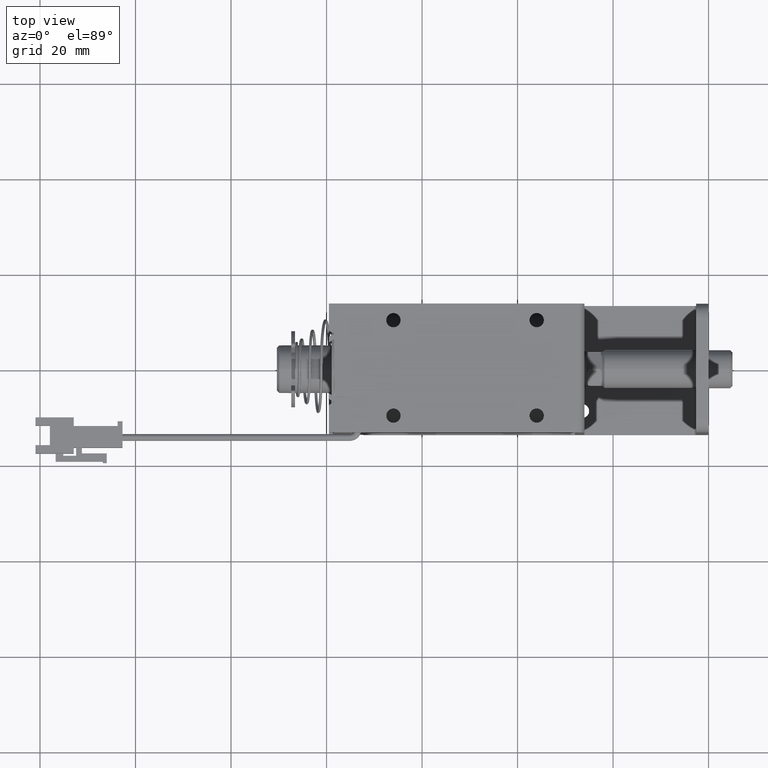
[diagram: clean part render]
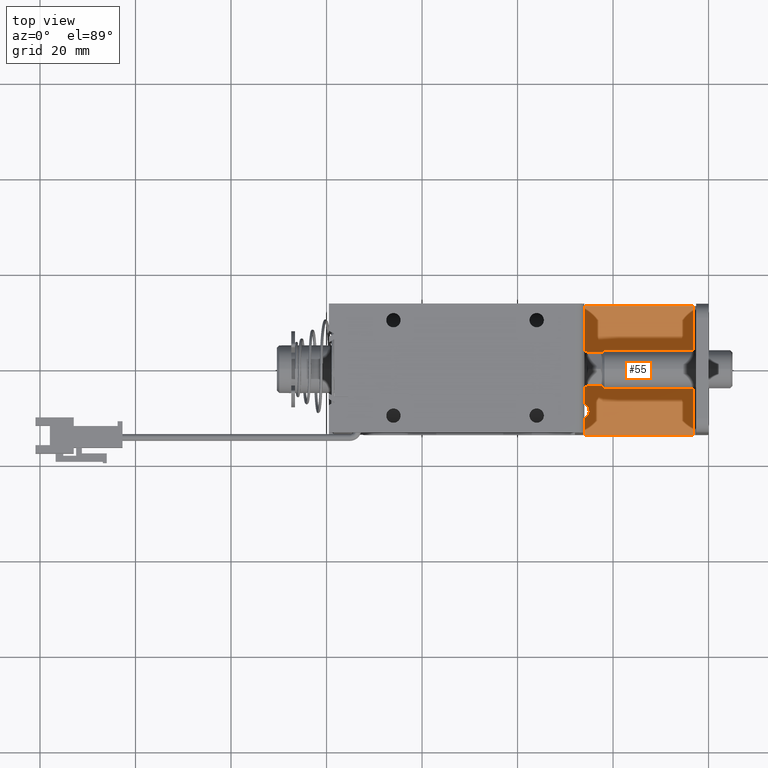
[diagram: same view with one face highlighted and labeled with its STEP entity id]
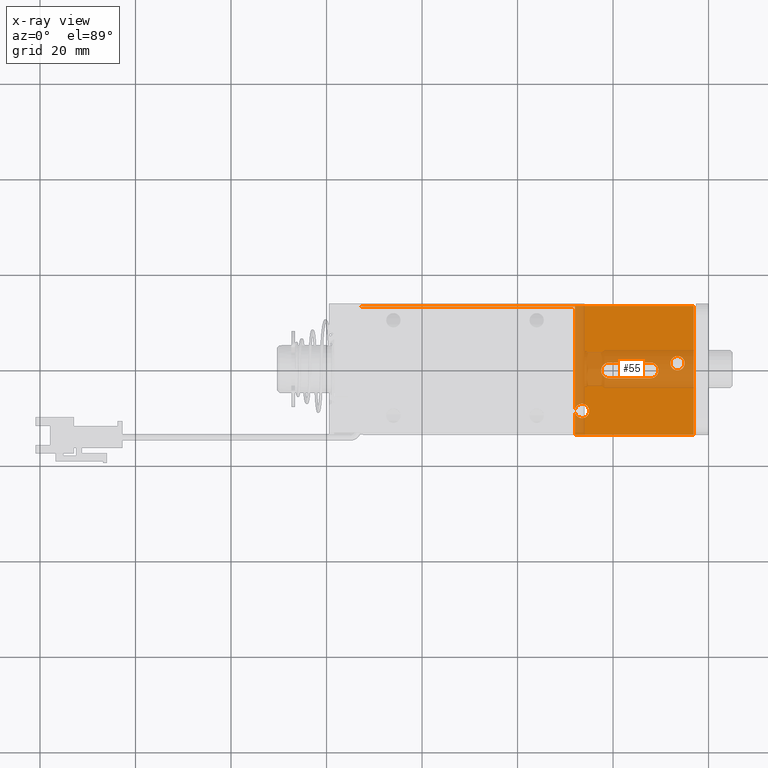
[diagram: x-ray of the same camera — body ghosted, the highlighted face saturated]
A machine part, top view. The second image highlights one B-rep face of the part: STEP entity #55.
The next image is the same camera in x-ray: the body ghosted, the highlighted face saturated — about 29% of this face is hidden behind the body in this view.
In plain terms, the highlighted planar face has unit normal (0, 0, -1).
Its self-contained STEP definition (entity closure, byte-faithful):
#55=ADVANCED_FACE('',(#540,#541,#542),#539,.F.);
#539=PLANE('',#3969);
#540=FACE_OUTER_BOUND('',#3970,.T.);
#541=FACE_BOUND('',#3971,.T.);
#542=FACE_BOUND('',#3972,.T.);
#3966=CARTESIAN_POINT('',(3.86681145748E+000,-1.62000000000E+001,-1.50000000000E+001));
#3967=DIRECTION('',(0.00000000000E+000,0.00000000000E+000,-1.00000000000E+000));
#3968=DIRECTION('',(-1.00000000000E+000,0.00000000000E+000,0.00000000000E+000));
#3969=AXIS2_PLACEMENT_3D('',#3966,#3967,#3968);
#3970=EDGE_LOOP('',(#7012,#7013,#7014,#7015,#7016,#7017,#7018,#7019,#7020,#7021,#7022,#7023,#7024));
#3971=EDGE_LOOP('',(#7025,#7026,#7027,#7028));
#3972=EDGE_LOOP('',(#7029,#7030));
#7012=ORIENTED_EDGE('',*,*,#8825,.F.);
#7013=ORIENTED_EDGE('',*,*,#8826,.F.);
#7014=ORIENTED_EDGE('',*,*,#8827,.T.);
#7015=ORIENTED_EDGE('',*,*,#8828,.F.);
#7016=ORIENTED_EDGE('',*,*,#8829,.T.);
#7017=ORIENTED_EDGE('',*,*,#8830,.T.);
#7018=ORIENTED_EDGE('',*,*,#8831,.T.);
#7019=ORIENTED_EDGE('',*,*,#8832,.T.);
#7020=ORIENTED_EDGE('',*,*,#8833,.T.);
#7021=ORIENTED_EDGE('',*,*,#8834,.F.);
#7022=ORIENTED_EDGE('',*,*,#8835,.T.);
#7023=ORIENTED_EDGE('',*,*,#8836,.F.);
#7024=ORIENTED_EDGE('',*,*,#8807,.F.);
#7025=ORIENTED_EDGE('',*,*,#8803,.T.);
#7026=ORIENTED_EDGE('',*,*,#8800,.T.);
#7027=ORIENTED_EDGE('',*,*,#8797,.T.);
#7028=ORIENTED_EDGE('',*,*,#8794,.T.);
#7029=ORIENTED_EDGE('',*,*,#8837,.T.);
#7030=ORIENTED_EDGE('',*,*,#8838,.T.);
#8794=EDGE_CURVE('',#9979,#9972,#9980,.T.);
#8797=EDGE_CURVE('',#9999,#9979,#10000,.T.);
#8800=EDGE_CURVE('',#10019,#9999,#10020,.T.);
#8803=EDGE_CURVE('',#9972,#10019,#10038,.T.);
#8807=EDGE_CURVE('',#10059,#10044,#10066,.T.);
#8825=EDGE_CURVE('',#10186,#10059,#10187,.T.);
#8826=EDGE_CURVE('',#10193,#10186,#10194,.T.);
#8827=EDGE_CURVE('',#10193,#9797,#10200,.T.);
#8828=EDGE_CURVE('',#10206,#9797,#10207,.T.);
#8829=EDGE_CURVE('',#10206,#10213,#10214,.T.);
#8830=EDGE_CURVE('',#10213,#10220,#10221,.T.);
#8831=EDGE_CURVE('',#10220,#10213,#10227,.T.);
#8832=EDGE_CURVE('',#10213,#10233,#10234,.T.);
#8833=EDGE_CURVE('',#10233,#9818,#10240,.T.);
#8834=EDGE_CURVE('',#10246,#9818,#10247,.T.);
#8835=EDGE_CURVE('',#10246,#10253,#10254,.T.);
#8836=EDGE_CURVE('',#10044,#10253,#10260,.T.);
#8837=EDGE_CURVE('',#10266,#10267,#10268,.T.);
#8838=EDGE_CURVE('',#10267,#10266,#10274,.T.);
#9797=VERTEX_POINT('',#15803);
#9818=VERTEX_POINT('',#15815);
#9972=VERTEX_POINT('',#15908);
#9979=VERTEX_POINT('',#15912);
#9980=LINE('',#15913,#15914);
#9999=VERTEX_POINT('',#15924);
#10000=CIRCLE('',#15928,1.65000000000E+000);
#10019=VERTEX_POINT('',#15936);
#10020=LINE('',#15937,#15938);
#10038=CIRCLE('',#15950,1.65000000000E+000);
#10044=VERTEX_POINT('',#15951);
#10059=VERTEX_POINT('',#15960);
#10066=LINE('',#15964,#15965);
#10186=VERTEX_POINT('',#16034);
#10187=LINE('',#16035,#16036);
#10193=VERTEX_POINT('',#16038);
#10194=LINE('',#16039,#16040);
#10200=CIRCLE('',#16045,3.00000000000E+000);
#10206=VERTEX_POINT('',#16046);
#10207=LINE('',#16047,#16048);
#10213=VERTEX_POINT('',#16050);
#10214=LINE('',#16051,#16052);
#10220=VERTEX_POINT('',#16054);
#10221=CIRCLE('',#16058,1.50000000000E+000);
#10227=CIRCLE('',#16062,1.50000000000E+000);
#10233=VERTEX_POINT('',#16063);
#10234=LINE('',#16064,#16065);
#10240=LINE('',#16067,#16068);
#10246=VERTEX_POINT('',#16070);
#10247=CIRCLE('',#16074,3.00000000000E+000);
#10253=VERTEX_POINT('',#16075);
#10254=LINE('',#16076,#16077);
#10260=LINE('',#16079,#16080);
#10266=VERTEX_POINT('',#16082);
#10267=VERTEX_POINT('',#16083);
#10268=CIRCLE('',#16087,1.50000000000E+000);
#10274=CIRCLE('',#16091,1.50000000000E+000);
#15803=CARTESIAN_POINT('',(-7.27681145748E+001,1.34000000000E+001,-1.50000000000E+001));
#15815=CARTESIAN_POINT('',(-7.27681145748E+001,-1.34000000000E+001,-1.50000000000E+001));
#15908=CARTESIAN_POINT('',(-2.08500000000E+001,-1.65000000000E+000,-1.50000000000E+001));
#15912=CARTESIAN_POINT('',(-1.21500000000E+001,-1.65000000000E+000,-1.50000000000E+001));
#15913=CARTESIAN_POINT('',(-1.21500000000E+001,-1.65000000000E+000,-1.50000000000E+001));
#15914=VECTOR('',#15915,8.70000000000E+000);
#15915=DIRECTION('',(-1.00000000000E+000,0.00000000000E+000,0.00000000000E+000));
#15924=CARTESIAN_POINT('',(-1.21500000000E+001,1.65000000000E+000,-1.50000000000E+001));
#15925=CARTESIAN_POINT('',(-1.21500000000E+001,0.00000000000E+000,-1.50000000000E+001));
#15926=DIRECTION('',(0.00000000000E+000,0.00000000000E+000,-1.00000000000E+000));
#15927=DIRECTION('',(-1.00000000000E+000,-0.00000000000E+000,-0.00000000000E+000));
#15928=AXIS2_PLACEMENT_3D('',#15925,#15926,#15927);
#15936=CARTESIAN_POINT('',(-2.08500000000E+001,1.65000000000E+000,-1.50000000000E+001));
#15937=CARTESIAN_POINT('',(-2.08500000000E+001,1.65000000000E+000,-1.50000000000E+001));
#15938=VECTOR('',#15939,8.70000000000E+000);
#15939=DIRECTION('',(1.00000000000E+000,0.00000000000E+000,0.00000000000E+000));
#15947=CARTESIAN_POINT('',(-2.08500000000E+001,0.00000000000E+000,-1.50000000000E+001));
#15948=DIRECTION('',(0.00000000000E+000,0.00000000000E+000,-1.00000000000E+000));
#15949=DIRECTION('',(1.83690953073E-016,-1.00000000000E+000,0.00000000000E+000));
#15950=AXIS2_PLACEMENT_3D('',#15947,#15948,#15949);
#15951=CARTESIAN_POINT('',(-3.10000000000E+000,-2.50000000000E+000,-1.50000000000E+001));
#15960=CARTESIAN_POINT('',(-3.10000000000E+000,2.50000000000E+000,-1.50000000000E+001));
#15964=CARTESIAN_POINT('',(-3.10000000000E+000,2.50000000000E+000,-1.50000000000E+001));
#15965=VECTOR('',#15966,5.00000000000E+000);
#15966=DIRECTION('',(0.00000000000E+000,-1.00000000000E+000,0.00000000000E+000));
#16034=CARTESIAN_POINT('',(-3.10000000000E+000,1.35000000000E+001,-1.50000000000E+001));
#16035=CARTESIAN_POINT('',(-3.10000000000E+000,1.35000000000E+001,-1.50000000000E+001));
#16036=VECTOR('',#16037,1.10000000000E+001);
#16037=DIRECTION('',(0.00000000000E+000,-1.00000000000E+000,0.00000000000E+000));
#16038=CARTESIAN_POINT('',(-7.20000000000E+001,1.35000000000E+001,-1.50000000000E+001));
#16039=CARTESIAN_POINT('',(-7.20000000000E+001,1.35000000000E+001,-1.50000000000E+001));
#16040=VECTOR('',#16041,6.89000000000E+001);
#16041=DIRECTION('',(1.00000000000E+000,0.00000000000E+000,0.00000000000E+000));
#16042=CARTESIAN_POINT('',(-7.20000000000E+001,1.05000000000E+001,-1.50000000000E+001));
#16043=DIRECTION('',(0.00000000000E+000,-0.00000000000E+000,1.00000000000E+000));
#16044=DIRECTION('',(1.00000000000E+000,-0.00000000000E+000,-0.00000000000E+000));
#16045=AXIS2_PLACEMENT_3D('',#16042,#16043,#16044);
#16046=CARTESIAN_POINT('',(-2.80000000000E+001,1.34000000000E+001,-1.49999999999E+001));
#16047=CARTESIAN_POINT('',(-2.80000000000E+001,1.34000000000E+001,-1.49999999999E+001));
#16048=VECTOR('',#16049,4.47681145748E+001);
#16049=DIRECTION('',(-1.00000000000E+000,2.38074378107E-016,-1.16339012768E-012));
#16050=CARTESIAN_POINT('',(-2.80000000000E+001,-8.50000000000E+000,-1.50000000000E+001));
#16051=CARTESIAN_POINT('',(-2.80000000000E+001,1.34000000000E+001,-1.50000000000E+001));
#16052=VECTOR('',#16053,2.19000000000E+001);
#16053=DIRECTION('',(0.00000000000E+000,-1.00000000000E+000,0.00000000000E+000));
#16054=CARTESIAN_POINT('',(-2.50000000000E+001,-8.50000000000E+000,-1.50000000000E+001));
#16055=CARTESIAN_POINT('',(-2.65000000000E+001,-8.50000000000E+000,-1.50000000000E+001));
#16056=DIRECTION('',(0.00000000000E+000,0.00000000000E+000,-1.00000000000E+000));
#16057=DIRECTION('',(-1.00000000000E+000,-0.00000000000E+000,-0.00000000000E+000));
#16058=AXIS2_PLACEMENT_3D('',#16055,#16056,#16057);
#16059=CARTESIAN_POINT('',(-2.65000000000E+001,-8.50000000000E+000,-1.50000000000E+001));
#16060=DIRECTION('',(0.00000000000E+000,0.00000000000E+000,-1.00000000000E+000));
#16061=DIRECTION('',(-1.00000000000E+000,-0.00000000000E+000,-0.00000000000E+000));
#16062=AXIS2_PLACEMENT_3D('',#16059,#16060,#16061);
#16063=CARTESIAN_POINT('',(-2.80000000000E+001,-1.34000000000E+001,-1.49999999999E+001));
#16064=CARTESIAN_POINT('',(-2.80000000000E+001,-8.50000000000E+000,-1.50000000000E+001));
#16065=VECTOR('',#16066,4.90000000000E+000);
#16066=DIRECTION('',(0.00000000000E+000,-1.00000000000E+000,0.00000000000E+000));
#16067=CARTESIAN_POINT('',(-2.80000000000E+001,-1.34000000000E+001,-1.49999999999E+001));
#16068=VECTOR('',#16069,4.47681145748E+001);
#16069=DIRECTION('',(-1.00000000000E+000,0.00000000000E+000,-1.16339012768E-012));
#16070=CARTESIAN_POINT('',(-7.20000000000E+001,-1.35000000000E+001,-1.50000000000E+001));
#16071=CARTESIAN_POINT('',(-7.20000000000E+001,-1.05000000000E+001,-1.50000000000E+001));
#16072=DIRECTION('',(1.16339959473E-012,0.00000000000E+000,-1.00000000000E+000));
#16073=DIRECTION('',(-1.00000000000E+000,-0.00000000000E+000,-1.16339959473E-012));
#16074=AXIS2_PLACEMENT_3D('',#16071,#16072,#16073);
#16075=CARTESIAN_POINT('',(-3.10000000000E+000,-1.35000000000E+001,-1.50000000000E+001));
#16076=CARTESIAN_POINT('',(-7.20000000000E+001,-1.35000000000E+001,-1.50000000000E+001));
#16077=VECTOR('',#16078,6.89000000000E+001);
#16078=DIRECTION('',(1.00000000000E+000,0.00000000000E+000,0.00000000000E+000));
#16079=CARTESIAN_POINT('',(-3.10000000000E+000,-2.50000000000E+000,-1.50000000000E+001));
#16080=VECTOR('',#16081,1.10000000000E+001);
#16081=DIRECTION('',(0.00000000000E+000,-1.00000000000E+000,0.00000000000E+000));
#16082=CARTESIAN_POINT('',(-5.00000000000E+000,1.50000000000E+000,-1.50000000000E+001));
#16083=CARTESIAN_POINT('',(-8.00000000000E+000,1.50000000000E+000,-1.50000000000E+001));
#16084=CARTESIAN_POINT('',(-6.50000000000E+000,1.50000000000E+000,-1.50000000000E+001));
#16085=DIRECTION('',(0.00000000000E+000,0.00000000000E+000,-1.00000000000E+000));
#16086=DIRECTION('',(1.00000000000E+000,1.22460635382E-016,0.00000000000E+000));
#16087=AXIS2_PLACEMENT_3D('',#16084,#16085,#16086);
#16088=CARTESIAN_POINT('',(-6.50000000000E+000,1.50000000000E+000,-1.50000000000E+001));
#16089=DIRECTION('',(0.00000000000E+000,0.00000000000E+000,-1.00000000000E+000));
#16090=DIRECTION('',(1.00000000000E+000,1.22460635382E-016,0.00000000000E+000));
#16091=AXIS2_PLACEMENT_3D('',#16088,#16089,#16090);